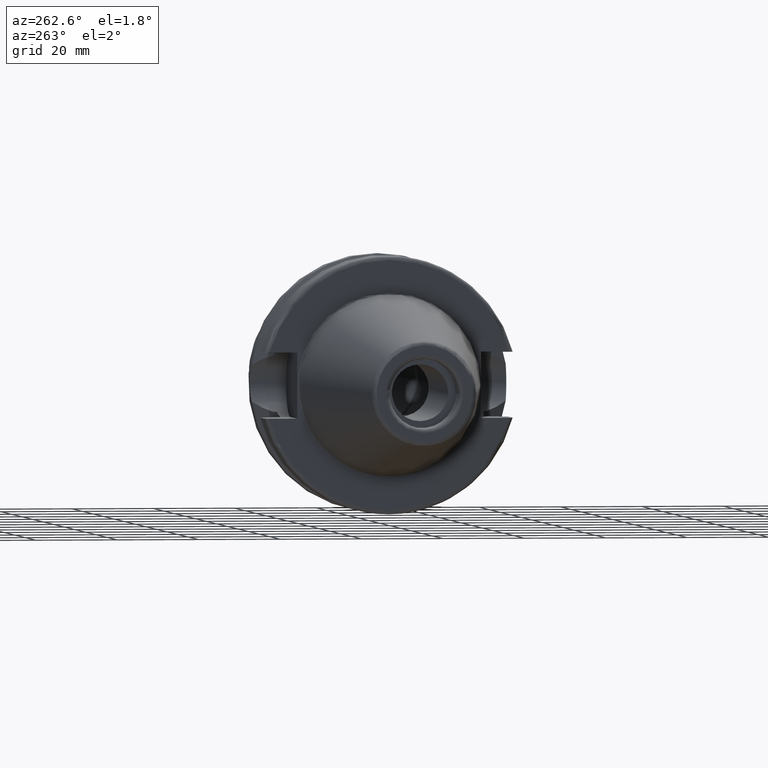
[diagram: clean part render]
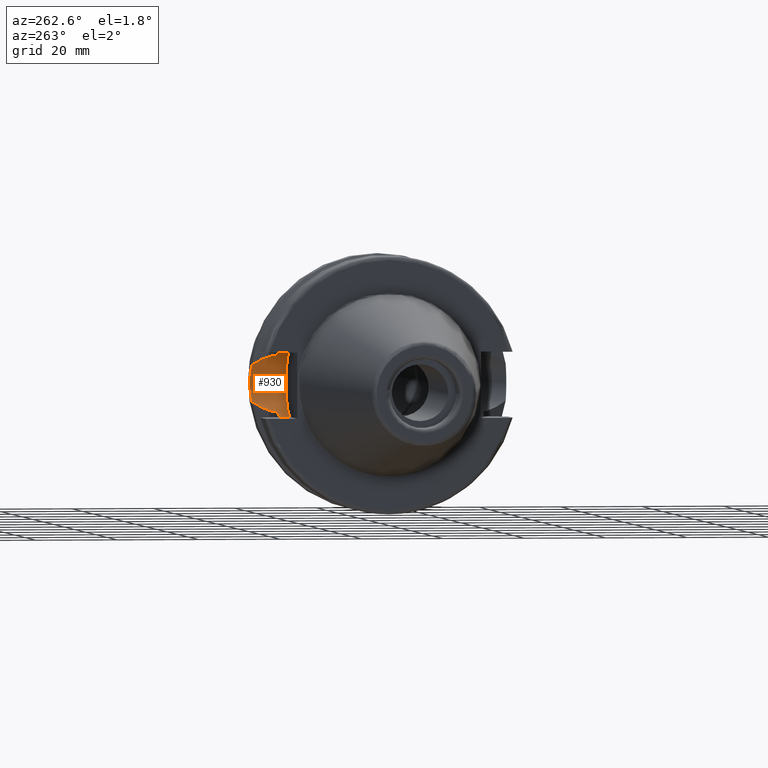
[diagram: same view with one face highlighted and labeled with its STEP entity id]
A machine part, auxiliary view. The second image highlights one B-rep face of the part: STEP entity #930.
In plain terms, the highlighted cylindrical surface (edge-blend (fillet) strip) has radius 8.05 mm, axis along (0, 1, 0).
Its self-contained STEP definition (entity closure, byte-faithful):
#48=B_SPLINE_CURVE_WITH_KNOTS('',3,(#2053,#2054,#2055,#2056,#2057,#2058,
#2059,#2060,#2061,#2062),.UNSPECIFIED.,.F.,.F.,(4,2,2,2,4),(3.19984995650548,
3.35166149968205,3.65633255521115,3.96100361074024,4.11281515391681),
 .UNSPECIFIED.);
#49=B_SPLINE_CURVE_WITH_KNOTS('',3,(#2068,#2069,#2070,#2071,#2072,#2073),
 .UNSPECIFIED.,.F.,.F.,(4,2,4),(1.46421027899563,1.54570476603974,2.04294020568402),
 .UNSPECIFIED.);
#50=B_SPLINE_CURVE_WITH_KNOTS('',3,(#2083,#2084,#2085,#2086,#2087,#2088),
 .UNSPECIFIED.,.F.,.F.,(4,2,4),(2.44288295924093,2.7482928065289,2.86149131778004),
 .UNSPECIFIED.);
#52=B_SPLINE_CURVE_WITH_KNOTS('',3,(#2124,#2125,#2126,#2127,#2128,#2129),
 .UNSPECIFIED.,.F.,.F.,(4,2,4),(-0.418608358539113,-0.305409847287967,0.),
 .UNSPECIFIED.);
#53=B_SPLINE_CURVE_WITH_KNOTS('',3,(#2132,#2133,#2134,#2135,#2136,#2137),
 .UNSPECIFIED.,.F.,.F.,(4,2,4),(3.12975744792551,3.6269928875698,3.7084873746139),
 .UNSPECIFIED.);
#81=LINE('',#2077,#128);
#85=LINE('',#2118,#132);
#86=LINE('',#2122,#133);
#87=LINE('',#2131,#134);
#128=VECTOR('',#1233,10.);
#132=VECTOR('',#1259,10.);
#133=VECTOR('',#1262,10.);
#134=VECTOR('',#1263,10.);
#159=CYLINDRICAL_SURFACE('',#1043,8.05);
#226=FACE_OUTER_BOUND('',#290,.T.);
#290=EDGE_LOOP('',(#769,#770,#771,#772,#773,#774,#775,#776,#777,#778));
#354=CIRCLE('',#1044,8.05);
#436=VERTEX_POINT('',#2050);
#437=VERTEX_POINT('',#2052);
#438=VERTEX_POINT('',#2066);
#439=VERTEX_POINT('',#2075);
#441=VERTEX_POINT('',#2081);
#446=VERTEX_POINT('',#2117);
#447=VERTEX_POINT('',#2119);
#448=VERTEX_POINT('',#2121);
#449=VERTEX_POINT('',#2123);
#450=VERTEX_POINT('',#2130);
#546=EDGE_CURVE('',#436,#437,#48,.T.);
#550=EDGE_CURVE('',#438,#436,#49,.T.);
#552=EDGE_CURVE('',#439,#438,#81,.T.);
#555=EDGE_CURVE('',#441,#439,#50,.T.);
#564=EDGE_CURVE('',#446,#441,#85,.T.);
#565=EDGE_CURVE('',#447,#446,#354,.T.);
#566=EDGE_CURVE('',#447,#448,#86,.T.);
#567=EDGE_CURVE('',#449,#448,#52,.T.);
#568=EDGE_CURVE('',#450,#449,#87,.T.);
#569=EDGE_CURVE('',#437,#450,#53,.T.);
#769=ORIENTED_EDGE('',*,*,#555,.F.);
#770=ORIENTED_EDGE('',*,*,#564,.F.);
#771=ORIENTED_EDGE('',*,*,#565,.F.);
#772=ORIENTED_EDGE('',*,*,#566,.T.);
#773=ORIENTED_EDGE('',*,*,#567,.F.);
#774=ORIENTED_EDGE('',*,*,#568,.F.);
#775=ORIENTED_EDGE('',*,*,#569,.F.);
#776=ORIENTED_EDGE('',*,*,#546,.F.);
#777=ORIENTED_EDGE('',*,*,#550,.F.);
#778=ORIENTED_EDGE('',*,*,#552,.F.);
#930=ADVANCED_FACE('',(#226),#159,.F.);
#1043=AXIS2_PLACEMENT_3D('',#2116,#1257,#1258);
#1044=AXIS2_PLACEMENT_3D('',#2120,#1260,#1261);
#1233=DIRECTION('',(0.,1.,0.));
#1257=DIRECTION('center_axis',(0.,1.,0.));
#1258=DIRECTION('ref_axis',(0.,0.,1.));
#1259=DIRECTION('',(0.,1.,0.));
#1260=DIRECTION('center_axis',(0.,1.,0.));
#1261=DIRECTION('ref_axis',(0.,0.,1.));
#1262=DIRECTION('',(0.,1.,0.));
#1263=DIRECTION('',(0.,-1.,0.));
#2050=CARTESIAN_POINT('',(21.6309636926618,31.1782420264945,-4.49079326370462));
#2052=CARTESIAN_POINT('',(21.6309636926618,31.1782420264945,4.49079326370462));
#2053=CARTESIAN_POINT('Ctrl Pts',(21.6309636926618,31.1782420264945,-4.49079326370462));
#2054=CARTESIAN_POINT('Ctrl Pts',(21.92482980253,31.2412125047166,-4.05360796141052));
#2055=CARTESIAN_POINT('Ctrl Pts',(22.1796133812043,31.2997625705024,-3.5806535819887));
#2056=CARTESIAN_POINT('Ctrl Pts',(22.7961189876535,31.445974204441,-2.09580170425552));
#2057=CARTESIAN_POINT('Ctrl Pts',(23.,31.5,-1.01557018509698));
#2058=CARTESIAN_POINT('Ctrl Pts',(23.,31.5,1.01557018509698));
#2059=CARTESIAN_POINT('Ctrl Pts',(22.7961189876535,31.445974204441,2.09580170425552));
#2060=CARTESIAN_POINT('Ctrl Pts',(22.1796133812044,31.2997625705024,3.5806535819887));
#2061=CARTESIAN_POINT('Ctrl Pts',(21.92482980253,31.2412125047166,4.05360796141052));
#2062=CARTESIAN_POINT('Ctrl Pts',(21.6309636926618,31.1782420264945,4.49079326370462));
#2066=CARTESIAN_POINT('',(19.1,26.201311395455,-6.89782574439221));
#2068=CARTESIAN_POINT('Ctrl Pts',(19.1,26.201311395455,-6.89782574439221));
#2069=CARTESIAN_POINT('Ctrl Pts',(19.2210929544554,26.438473693351,-6.82497151762396));
#2070=CARTESIAN_POINT('Ctrl Pts',(19.3406963650696,26.6728819297427,-6.74867108656043));
#2071=CARTESIAN_POINT('Ctrl Pts',(20.1784155384866,28.3157123387483,-6.1823136897693));
#2072=CARTESIAN_POINT('Ctrl Pts',(20.9728756148302,29.8797957262938,-5.46983244373119));
#2073=CARTESIAN_POINT('Ctrl Pts',(21.6309636926618,31.1782420264945,-4.49079326370462));
#2075=CARTESIAN_POINT('',(19.1,25.3793222919762,-6.89782574439221));
#2077=CARTESIAN_POINT('',(19.1,22.6,-6.89782574439221));
#2081=CARTESIAN_POINT('',(14.95,25.0377215417058,-8.05));
#2083=CARTESIAN_POINT('Ctrl Pts',(14.95,25.0377215417058,-8.05));
#2084=CARTESIAN_POINT('Ctrl Pts',(15.9680328242932,25.0377215417058,-8.05));
#2085=CARTESIAN_POINT('Ctrl Pts',(17.0490724969254,25.1063150193149,-7.84520188991776));
#2086=CARTESIAN_POINT('Ctrl Pts',(18.4068260684762,25.2726009715968,-7.28086186600679));
#2087=CARTESIAN_POINT('Ctrl Pts',(18.7623374744972,25.3241080721198,-7.10097664045187));
#2088=CARTESIAN_POINT('Ctrl Pts',(19.1,25.3793222919762,-6.89782574439221));
#2116=CARTESIAN_POINT('Origin',(14.95,22.6,0.));
#2117=CARTESIAN_POINT('',(14.95,22.6,-8.05));
#2118=CARTESIAN_POINT('',(14.95,22.6,-8.05));
#2119=CARTESIAN_POINT('',(14.95,22.6,8.05));
#2120=CARTESIAN_POINT('Origin',(14.95,22.6,0.));
#2121=CARTESIAN_POINT('',(14.95,25.0377215417058,8.05));
#2122=CARTESIAN_POINT('',(14.95,22.6,8.05));
#2123=CARTESIAN_POINT('',(19.1,25.3793222919762,6.89782574439221));
#2124=CARTESIAN_POINT('Ctrl Pts',(19.1,25.3793222919762,6.89782574439221));
#2125=CARTESIAN_POINT('Ctrl Pts',(18.7623374744972,25.3241080721198,7.10097664045187));
#2126=CARTESIAN_POINT('Ctrl Pts',(18.4068260684762,25.2726009715968,7.28086186600679));
#2127=CARTESIAN_POINT('Ctrl Pts',(17.0490724969254,25.1063150193149,7.84520188991776));
#2128=CARTESIAN_POINT('Ctrl Pts',(15.9680328242932,25.0377215417058,8.05));
#2129=CARTESIAN_POINT('Ctrl Pts',(14.95,25.0377215417058,8.05));
#2130=CARTESIAN_POINT('',(19.1,26.201311395455,6.89782574439221));
#2131=CARTESIAN_POINT('',(19.1,22.6,6.89782574439221));
#2132=CARTESIAN_POINT('Ctrl Pts',(21.6309636926618,31.1782420264945,4.49079326370461));
#2133=CARTESIAN_POINT('Ctrl Pts',(20.9728756148302,29.8797957262938,5.46983244373119));
#2134=CARTESIAN_POINT('Ctrl Pts',(20.1784155384866,28.3157123387483,6.1823136897693));
#2135=CARTESIAN_POINT('Ctrl Pts',(19.3406963650696,26.6728819297427,6.74867108656043));
#2136=CARTESIAN_POINT('Ctrl Pts',(19.2210929544554,26.438473693351,6.82497151762397));
#2137=CARTESIAN_POINT('Ctrl Pts',(19.1,26.201311395455,6.89782574439222));